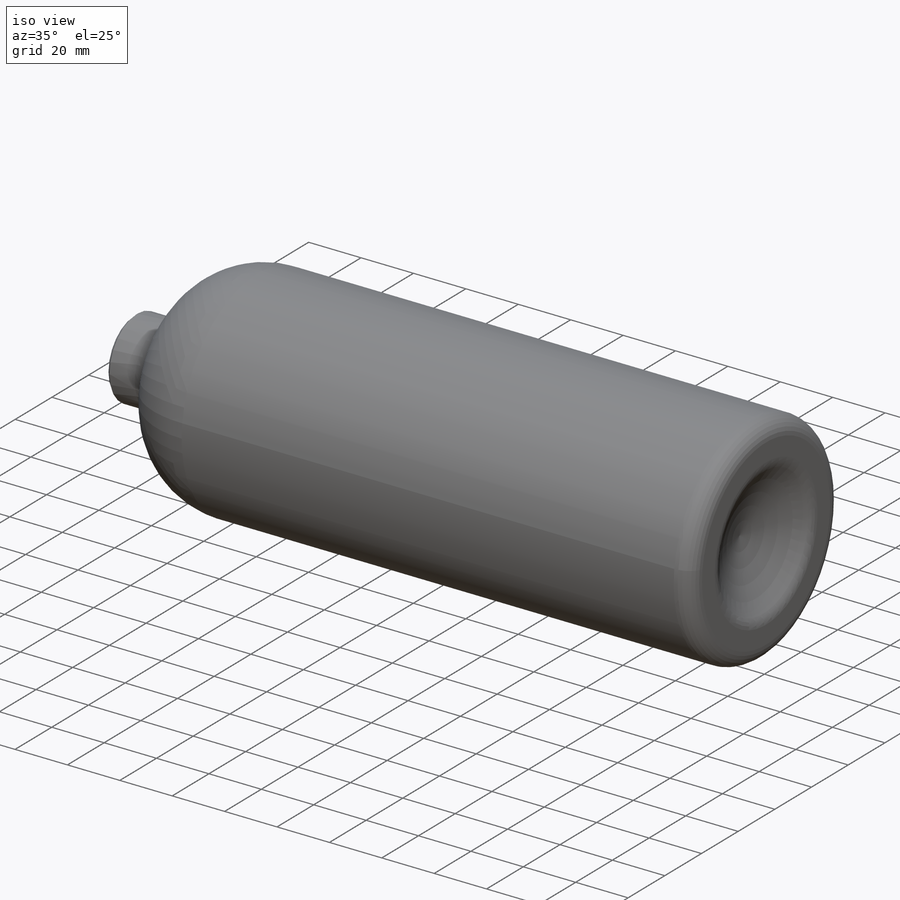
[diagram: iso view]
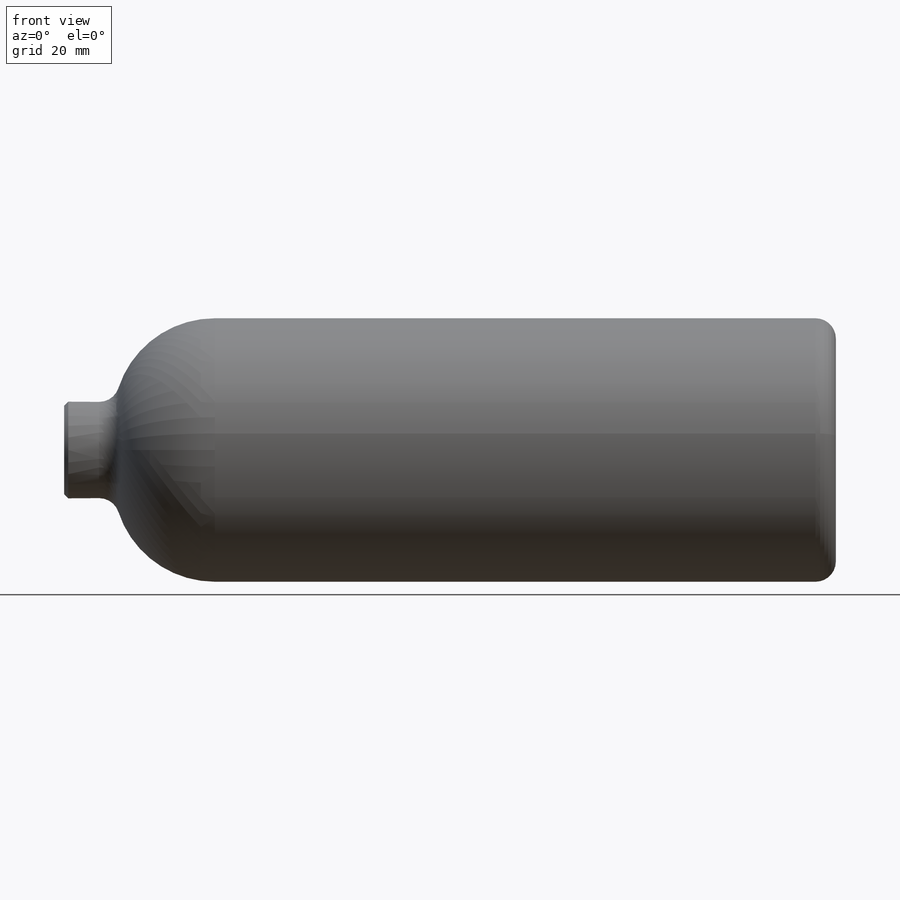
[diagram: front view]
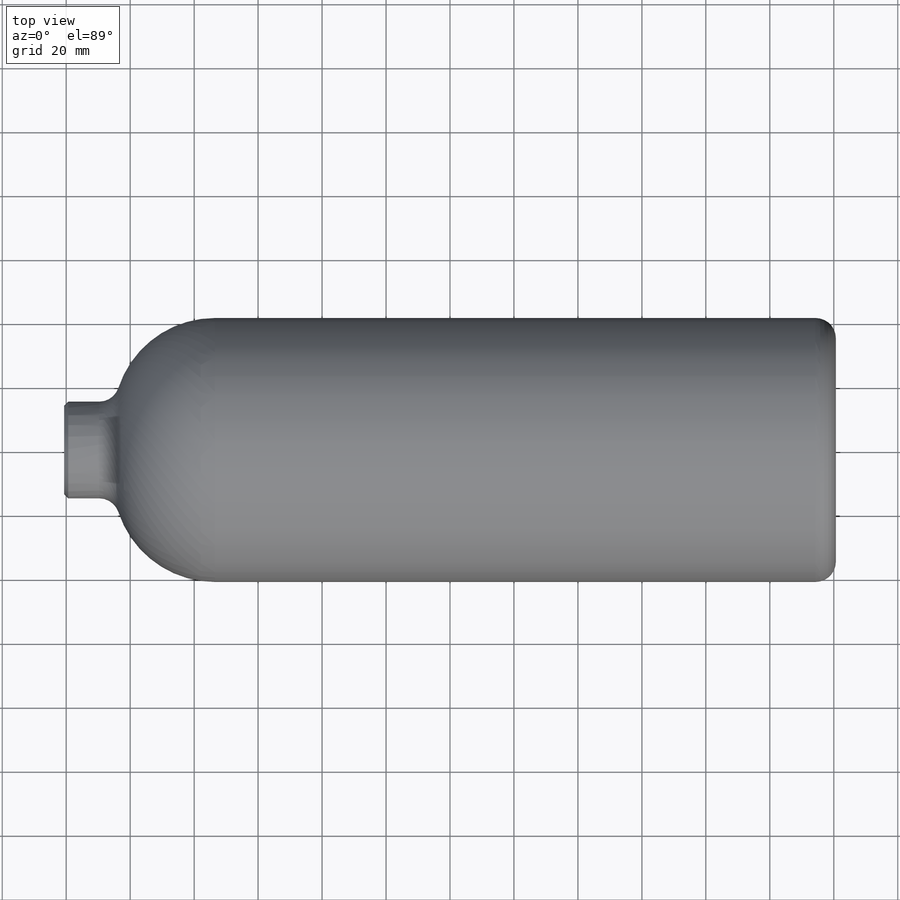
[diagram: top view]
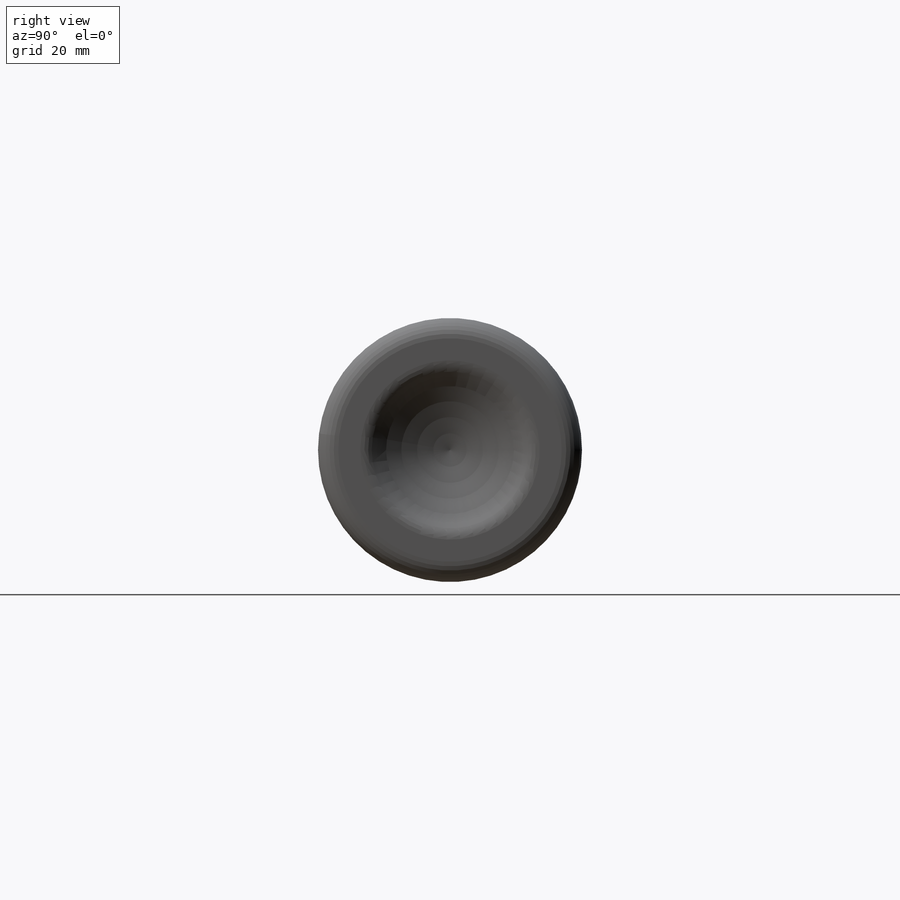
[diagram: right view]
SOLIDWORKS PART (.sldprt)
format: sldprt  version: not decoded by parser v0  size: 2,972,160 bytes
history: native  units: mm
features: sketch x7, cut_extrude x4, fillet x3, material x1, revolve x1, chamfer x1, shell x1, pattern_circular x1, plane x1 (+17 scaffold rows collapsed)
feature tree (37):
  scaffold x17  (default folders/planes/origin — collapsed)
  material  "6061-T6 (SS)"
  sketch  "Sketch1"  dims[c1.D8=~55.571609mm c1.D9=6.35mm c1.D1=241.3mm c1.D2=~129.118888mm c1.D3=241.3mm c2.D2=41.275mm c2.D3=228.6mm c2.D4=12.7mm c3.D3=15.875mm c3.D4=15.113mm c3.D5=10.16mm c3.D6=19.05mm c3.D1=41.275mm c3.D2=241.3mm c3.D7=120.65mm c4.D5=15.24mm c4.D6=10.16mm]
  revolve  "Revolve1"  Angle=360deg
  fillet  "Fillet1"  Radius=31.75mm
  chamfer  "Chamfer1"  Distance=1.27mm Angle=45deg
  fillet  "Fillet5"  Radius=6.35mm
  shell  "Shell1"  Thickness=6.35mm
  sketch  "Sketch2"
  sketch  "Sketch4"
  cut_extrude  "Cut-Extrude1"  [1 undecoded]
  sketch  "Sketch6"
  cut_extrude  "Cut-Extrude2"  [1 undecoded]
  fillet  "Fillet7"  Radius=6.35mm
  sketch  "Sketch7"  dims[D1=20.32mm]
  cut_extrude  "Cut-Extrude3"  Depth=50.8mm
  sketch  "Sketch8"  dims[D1=6.35mm D2=3.175mm]
  cut_extrude  "Cut-Extrude4"  Depth=12.7mm
  pattern_circular  "CirPattern1"  Count=4 Angle=360deg
  plane  "Plane1"  Offset=76.2mm
  sketch  "Sketch9"  dims[D1=1.27mm]
decode coverage: 13 of 18 modeling features carry decoded parameters
note: ~ marks probable driven/reference dimensions
note: 2 parameter values undecoded
note: suppression state not decoded; provenance and decode notes live in map.json
